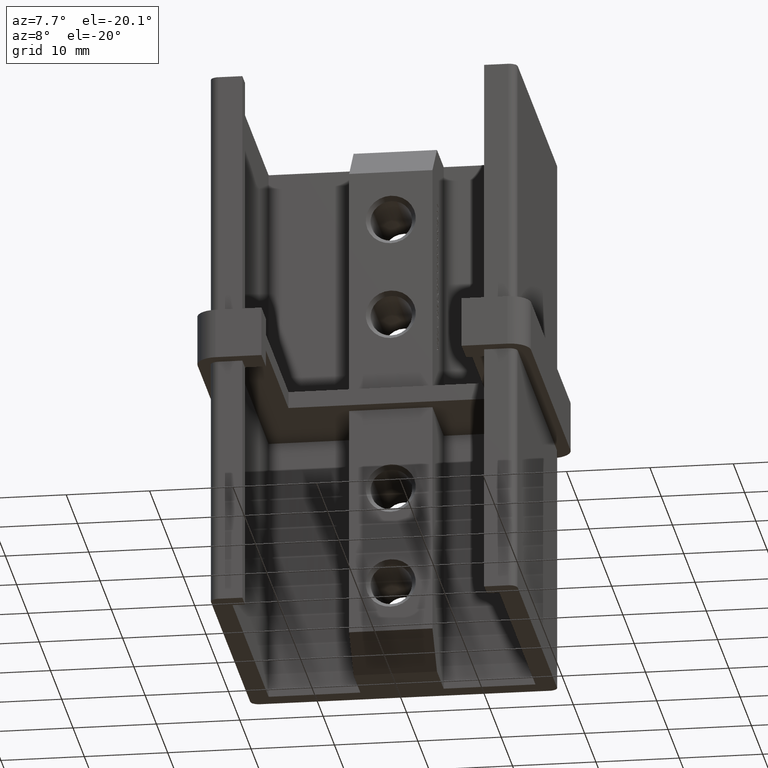
[diagram: clean part render]
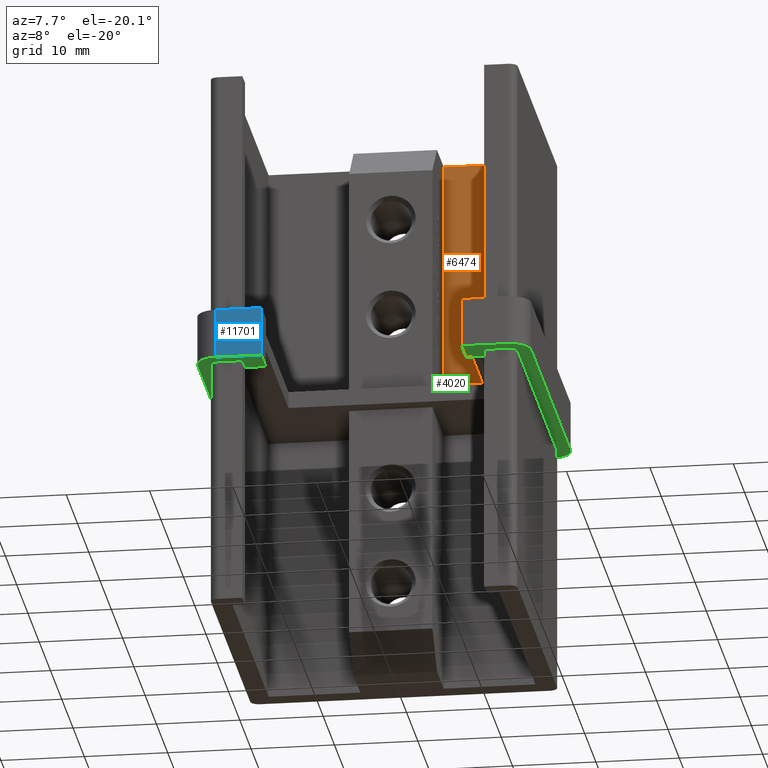
[diagram: same view with three faces highlighted in distinct colors, each labeled with its STEP entity id]
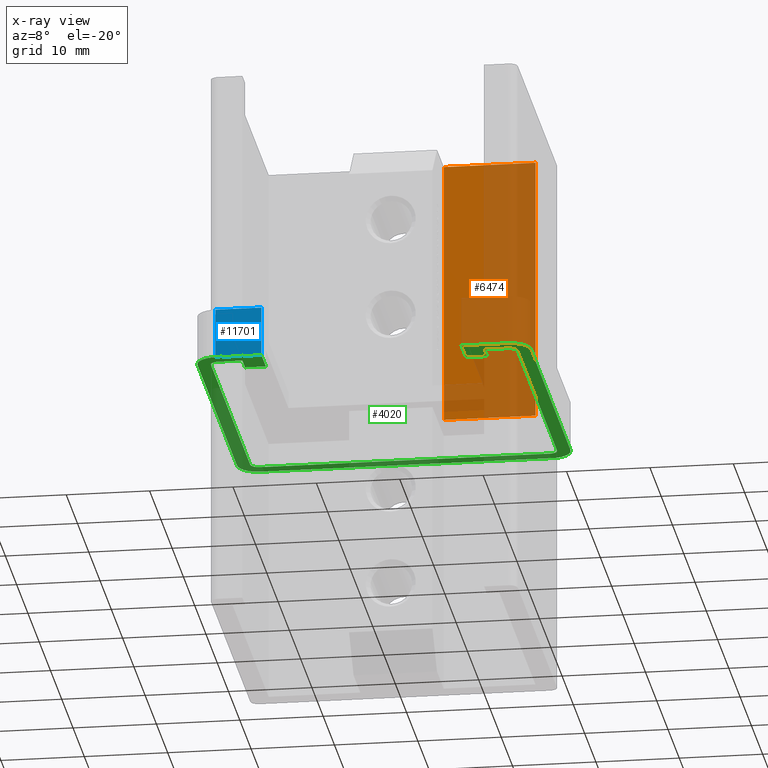
[diagram: x-ray of the same camera — body ghosted, the three highlighted faces saturated]
A machine part, auxiliary view with three faces highlighted in distinct colors.
The next image is the same camera in x-ray (body ghosted, the three faces saturated) — at least one of them is partly hidden behind the body in this view.
Their STEP definitions:

[orange] entity #6474 — the highlighted planar face has unit normal (-0, 1, 0).
#902 = CARTESIAN_POINT ( 'NONE',  ( 5.000000000000004441, 16.00000000000000000, -2.999999999999997335 ) ) ;
#1118 = CARTESIAN_POINT ( 'NONE',  ( 5.000000000000000000, 15.99999999999999645, 1.000000000000000000 ) ) ;
#1190 = VECTOR ( 'NONE', #4394, 1000.000000000000000 ) ;
#2762 = LINE ( 'NONE', #3332, #6674 ) ;
#3129 = LINE ( 'NONE', #902, #11773 ) ;
#3332 = CARTESIAN_POINT ( 'NONE',  ( 16.00000000000000355, 16.00000000000000000, 33.00000000000000000 ) ) ;
#3423 = VERTEX_POINT ( 'NONE', #7802 ) ;
#4394 = DIRECTION ( 'NONE',  ( -1.000000000000000000, -3.154042683594194134E-16, -0.000000000000000000 ) ) ;
#4614 = VERTEX_POINT ( 'NONE', #9147 ) ;
#4632 = ORIENTED_EDGE ( 'NONE', *, *, #9198, .T. ) ;
#5785 = VERTEX_POINT ( 'NONE', #9968 ) ;
#5965 = EDGE_CURVE ( 'NONE', #10686, #3423, #3129, .T. ) ;
#6474 = ADVANCED_FACE ( 'NONE', ( #11579 ), #6626, .F. ) ;
#6579 = DIRECTION ( 'NONE',  ( -0.000000000000000000, 1.000000000000000000, 0.000000000000000000 ) ) ;
#6626 = PLANE ( 'NONE',  #12592 ) ;
#6631 = EDGE_CURVE ( 'NONE', #10686, #4614, #2762, .T. ) ;
#6670 = CARTESIAN_POINT ( 'NONE',  ( 5.000000000000000000, 15.99999999999999645, 33.00000000000000000 ) ) ;
#6674 = VECTOR ( 'NONE', #9205, 1000.000000000000000 ) ;
#6727 = DIRECTION ( 'NONE',  ( 0.000000000000000000, -0.000000000000000000, 1.000000000000000000 ) ) ;
#7031 = ORIENTED_EDGE ( 'NONE', *, *, #6631, .F. ) ;
#7802 = CARTESIAN_POINT ( 'NONE',  ( 5.000000000000000000, 15.99999999999999645, 1.000000000000000000 ) ) ;
#9147 = CARTESIAN_POINT ( 'NONE',  ( 16.00000000000000355, 16.00000000000000000, 33.00000000000000000 ) ) ;
#9198 = EDGE_CURVE ( 'NONE', #5785, #4614, #14152, .T. ) ;
#9205 = DIRECTION ( 'NONE',  ( 1.000000000000000000, -0.000000000000000000, -0.000000000000000000 ) ) ;
#9361 = CARTESIAN_POINT ( 'NONE',  ( 16.00000000000000355, 16.00000000000000000, -3.000000000000000000 ) ) ;
#9968 = CARTESIAN_POINT ( 'NONE',  ( 16.00000000000000355, 16.00000000000000000, 1.000000000000000000 ) ) ;
#10237 = DIRECTION ( 'NONE',  ( -0.000000000000000000, -0.000000000000000000, 1.000000000000000000 ) ) ;
#10425 = ORIENTED_EDGE ( 'NONE', *, *, #5965, .T. ) ;
#10686 = VERTEX_POINT ( 'NONE', #6670 ) ;
#11236 = EDGE_LOOP ( 'NONE', ( #14599, #4632, #7031, #10425 ) ) ;
#11579 = FACE_OUTER_BOUND ( 'NONE', #11236, .T. ) ;
#11773 = VECTOR ( 'NONE', #14379, 1000.000000000000000 ) ;
#12242 = EDGE_CURVE ( 'NONE', #5785, #3423, #13719, .T. ) ;
#12592 = AXIS2_PLACEMENT_3D ( 'NONE', #14397, #6579, #6727 ) ;
#12720 = VECTOR ( 'NONE', #10237, 1000.000000000000000 ) ;
#13719 = LINE ( 'NONE', #1118, #1190 ) ;
#14152 = LINE ( 'NONE', #9361, #12720 ) ;
#14379 = DIRECTION ( 'NONE',  ( 1.314184451497581013E-16, 0.000000000000000000, -1.000000000000000000 ) ) ;
#14397 = CARTESIAN_POINT ( 'NONE',  ( -16.00000000000000000, 16.00000000000000000, -3.000000000000000000 ) ) ;
#14599 = ORIENTED_EDGE ( 'NONE', *, *, #12242, .F. ) ;

[blue] entity #11701 — the highlighted planar face has unit normal (0, 1, 0).
#1341 = DIRECTION ( 'NONE',  ( -0.000000000000000000, -0.000000000000000000, 1.000000000000000000 ) ) ;
#1403 = CARTESIAN_POINT ( 'NONE',  ( -17.50000000000000000, -20.00000000000000000, 3.000000000000000000 ) ) ;
#1557 = DIRECTION ( 'NONE',  ( -0.000000000000000000, 0.000000000000000000, -1.000000000000000000 ) ) ;
#2493 = ORIENTED_EDGE ( 'NONE', *, *, #7087, .T. ) ;
#2660 = ORIENTED_EDGE ( 'NONE', *, *, #12438, .F. ) ;
#3430 = DIRECTION ( 'NONE',  ( 0.000000000000000000, 1.000000000000000000, 0.000000000000000000 ) ) ;
#4096 = VERTEX_POINT ( 'NONE', #5899 ) ;
#4526 = CARTESIAN_POINT ( 'NONE',  ( -20.00000000000000000, -20.00000000000000000, 3.000000000000000000 ) ) ;
#4836 = CARTESIAN_POINT ( 'NONE',  ( -17.50000000000000000, -20.00000000000000000, 3.000000000000000000 ) ) ;
#5140 = EDGE_LOOP ( 'NONE', ( #2660, #7378, #2493, #10314 ) ) ;
#5847 = LINE ( 'NONE', #8075, #9005 ) ;
#5899 = CARTESIAN_POINT ( 'NONE',  ( -11.99999999999999822, -20.00000000000000000, -3.000000000000000000 ) ) ;
#5969 = LINE ( 'NONE', #13421, #8934 ) ;
#6728 = EDGE_CURVE ( 'NONE', #9200, #12799, #12995, .T. ) ;
#6802 = DIRECTION ( 'NONE',  ( 1.000000000000000000, 0.000000000000000000, 0.000000000000000000 ) ) ;
#6931 = CARTESIAN_POINT ( 'NONE',  ( -20.00000000000000000, -20.00000000000000000, 3.000000000000000000 ) ) ;
#6960 = CARTESIAN_POINT ( 'NONE',  ( -17.50000000000000000, -20.00000000000000000, -3.000000000000000000 ) ) ;
#7087 = EDGE_CURVE ( 'NONE', #12799, #4096, #5969, .T. ) ;
#7378 = ORIENTED_EDGE ( 'NONE', *, *, #6728, .T. ) ;
#7806 = VERTEX_POINT ( 'NONE', #8251 ) ;
#8075 = CARTESIAN_POINT ( 'NONE',  ( -11.99999999999999822, -20.00000000000000000, -3.000000000000000000 ) ) ;
#8079 = PLANE ( 'NONE',  #8902 ) ;
#8095 = DIRECTION ( 'NONE',  ( 1.000000000000000000, 0.000000000000000000, 0.000000000000000000 ) ) ;
#8251 = CARTESIAN_POINT ( 'NONE',  ( -11.99999999999999822, -20.00000000000000000, 3.000000000000000000 ) ) ;
#8902 = AXIS2_PLACEMENT_3D ( 'NONE', #4526, #3430, #10136 ) ;
#8934 = VECTOR ( 'NONE', #6802, 1000.000000000000000 ) ;
#9005 = VECTOR ( 'NONE', #1341, 1000.000000000000000 ) ;
#9200 = VERTEX_POINT ( 'NONE', #4836 ) ;
#9853 = LINE ( 'NONE', #6931, #11414 ) ;
#10136 = DIRECTION ( 'NONE',  ( 0.000000000000000000, -0.000000000000000000, 1.000000000000000000 ) ) ;
#10314 = ORIENTED_EDGE ( 'NONE', *, *, #10835, .T. ) ;
#10835 = EDGE_CURVE ( 'NONE', #4096, #7806, #5847, .T. ) ;
#11414 = VECTOR ( 'NONE', #8095, 1000.000000000000000 ) ;
#11701 = ADVANCED_FACE ( 'NONE', ( #13905 ), #8079, .F. ) ;
#12267 = VECTOR ( 'NONE', #1557, 1000.000000000000000 ) ;
#12438 = EDGE_CURVE ( 'NONE', #9200, #7806, #9853, .T. ) ;
#12799 = VERTEX_POINT ( 'NONE', #6960 ) ;
#12995 = LINE ( 'NONE', #1403, #12267 ) ;
#13421 = CARTESIAN_POINT ( 'NONE',  ( -20.00000000000000000, -20.00000000000000000, -3.000000000000000000 ) ) ;
#13905 = FACE_OUTER_BOUND ( 'NONE', #5140, .T. ) ;

[green] entity #4020 — the highlighted planar face has unit normal (-0, 0, 1).
#8 = LINE ( 'NONE', #11470, #13960 ) ;
#86 = VERTEX_POINT ( 'NONE', #8887 ) ;
#136 = ORIENTED_EDGE ( 'NONE', *, *, #14668, .F. ) ;
#252 = DIRECTION ( 'NONE',  ( -0.000000000000000000, 1.000000000000000000, -0.000000000000000000 ) ) ;
#261 = EDGE_CURVE ( 'NONE', #9141, #13187, #4163, .T. ) ;
#410 = DIRECTION ( 'NONE',  ( 1.000000000000000000, 0.000000000000000000, 0.000000000000000000 ) ) ;
#560 = EDGE_CURVE ( 'NONE', #9141, #11382, #10860, .T. ) ;
#796 = ORIENTED_EDGE ( 'NONE', *, *, #3954, .T. ) ;
#904 = CARTESIAN_POINT ( 'NONE',  ( 17.39999999999999147, 17.39999999999999858, -2.999999999999999112 ) ) ;
#916 = CARTESIAN_POINT ( 'NONE',  ( -20.00000000000000711, 17.50000000000000000, -3.000000000000000000 ) ) ;
#993 = DIRECTION ( 'NONE',  ( -0.000000000000000000, 0.000000000000000000, 1.000000000000000000 ) ) ;
#1215 = CIRCLE ( 'NONE', #2455, 1.000000000000000888 ) ;
#1256 = VECTOR ( 'NONE', #12340, 1000.000000000000000 ) ;
#1271 = AXIS2_PLACEMENT_3D ( 'NONE', #11110, #4353, #13371 ) ;
#1428 = ORIENTED_EDGE ( 'NONE', *, *, #14386, .F. ) ;
#1442 = LINE ( 'NONE', #7693, #1256 ) ;
#1578 = CARTESIAN_POINT ( 'NONE',  ( -14.49999999999999822, -18.40000000000000213, -3.000000000000000000 ) ) ;
#1584 = AXIS2_PLACEMENT_3D ( 'NONE', #9546, #11797, #2781 ) ;
#1761 = DIRECTION ( 'NONE',  ( 0.000000000000000000, -1.000000000000000000, 0.000000000000000000 ) ) ;
#1921 = ORIENTED_EDGE ( 'NONE', *, *, #560, .T. ) ;
#1989 = DIRECTION ( 'NONE',  ( 1.000000000000000000, 0.000000000000000000, 0.000000000000000000 ) ) ;
#2105 = LINE ( 'NONE', #7022, #9707 ) ;
#2180 = CARTESIAN_POINT ( 'NONE',  ( -18.40000000000000568, -17.40000000000000568, -3.000000000000000000 ) ) ;
#2219 = DIRECTION ( 'NONE',  ( 1.000000000000000000, 0.000000000000000000, 0.000000000000000000 ) ) ;
#2255 = VERTEX_POINT ( 'NONE', #7458 ) ;
#2264 = EDGE_CURVE ( 'NONE', #7928, #5059, #4568, .T. ) ;
#2440 = VECTOR ( 'NONE', #252, 1000.000000000000000 ) ;
#2455 = AXIS2_PLACEMENT_3D ( 'NONE', #5250, #13103, #7470 ) ;
#2462 = ORIENTED_EDGE ( 'NONE', *, *, #4251, .T. ) ;
#2477 = LINE ( 'NONE', #7731, #14671 ) ;
#2583 = ORIENTED_EDGE ( 'NONE', *, *, #261, .F. ) ;
#2615 = FACE_OUTER_BOUND ( 'NONE', #13537, .T. ) ;
#2618 = LINE ( 'NONE', #14126, #5483 ) ;
#2646 = DIRECTION ( 'NONE',  ( -1.000000000000000000, -0.000000000000000000, -0.000000000000000000 ) ) ;
#2781 = DIRECTION ( 'NONE',  ( 1.000000000000000000, 0.000000000000000000, 0.000000000000000000 ) ) ;
#2798 = CARTESIAN_POINT ( 'NONE',  ( 17.39999999999999147, 18.39999999999999858, -3.000000000000000000 ) ) ;
#2849 = DIRECTION ( 'NONE',  ( -1.000000000000000000, 0.000000000000000000, 0.000000000000000000 ) ) ;
#2924 = CARTESIAN_POINT ( 'NONE',  ( -11.99999999999999822, -16.00000000000000000, -3.000000000000000000 ) ) ;
#2940 = CARTESIAN_POINT ( 'NONE',  ( -14.49999999999999822, -15.99999999999999645, -3.000000000000000000 ) ) ;
#3111 = VERTEX_POINT ( 'NONE', #6098 ) ;
#3290 = CARTESIAN_POINT ( 'NONE',  ( 18.39999999999999147, -17.40000000000000568, -3.000000000000000000 ) ) ;
#3406 = AXIS2_PLACEMENT_3D ( 'NONE', #6142, #6093, #6242 ) ;
#3453 = CARTESIAN_POINT ( 'NONE',  ( 19.99999999999999289, 20.00000000000000000, -3.000000000000000000 ) ) ;
#3611 = CARTESIAN_POINT ( 'NONE',  ( 12.00000000000000178, -15.99999999999999645, -3.000000000000000000 ) ) ;
#3684 = LINE ( 'NONE', #12629, #5309 ) ;
#3713 = CARTESIAN_POINT ( 'NONE',  ( -20.00000000000000000, -20.00000000000000000, -3.000000000000000000 ) ) ;
#3816 = CARTESIAN_POINT ( 'NONE',  ( 18.39999999999999147, -18.40000000000000924, -3.000000000000000000 ) ) ;
#3946 = ORIENTED_EDGE ( 'NONE', *, *, #10601, .T. ) ;
#3954 = EDGE_CURVE ( 'NONE', #4531, #86, #14106, .T. ) ;
#4020 = ADVANCED_FACE ( 'NONE', ( #2615 ), #8261, .F. ) ;
#4036 = ORIENTED_EDGE ( 'NONE', *, *, #4849, .T. ) ;
#4060 = EDGE_CURVE ( 'NONE', #5059, #5058, #14278, .T. ) ;
#4096 = VERTEX_POINT ( 'NONE', #5899 ) ;
#4143 = EDGE_CURVE ( 'NONE', #14366, #5542, #2105, .T. ) ;
#4163 = LINE ( 'NONE', #3453, #10500 ) ;
#4251 = EDGE_CURVE ( 'NONE', #11892, #14603, #6903, .T. ) ;
#4300 = DIRECTION ( 'NONE',  ( 1.000000000000000000, 0.000000000000000000, 0.000000000000000000 ) ) ;
#4353 = DIRECTION ( 'NONE',  ( 0.000000000000000000, -0.000000000000000000, -1.000000000000000000 ) ) ;
#4419 = VERTEX_POINT ( 'NONE', #916 ) ;
#4472 = CARTESIAN_POINT ( 'NONE',  ( -17.50000000000000711, 17.50000000000000000, -3.000000000000000000 ) ) ;
#4531 = VERTEX_POINT ( 'NONE', #5625 ) ;
#4568 = LINE ( 'NONE', #5089, #11605 ) ;
#4601 = DIRECTION ( 'NONE',  ( -1.734723475976807094E-16, 1.000000000000000000, -0.000000000000000000 ) ) ;
#4625 = EDGE_CURVE ( 'NONE', #86, #7928, #3684, .T. ) ;
#4789 = EDGE_CURVE ( 'NONE', #12291, #12216, #2618, .T. ) ;
#4849 = EDGE_CURVE ( 'NONE', #12265, #13187, #7431, .T. ) ;
#5058 = VERTEX_POINT ( 'NONE', #11483 ) ;
#5059 = VERTEX_POINT ( 'NONE', #5709 ) ;
#5089 = CARTESIAN_POINT ( 'NONE',  ( 14.50000000000000178, -15.99999999999999289, -3.000000000000000000 ) ) ;
#5097 = CARTESIAN_POINT ( 'NONE',  ( -20.00000000000000711, 20.00000000000000000, -3.000000000000000000 ) ) ;
#5100 = CARTESIAN_POINT ( 'NONE',  ( -18.40000000000000568, 18.39999999999999858, -3.000000000000000000 ) ) ;
#5250 = CARTESIAN_POINT ( 'NONE',  ( -17.40000000000000568, 17.39999999999999858, -2.999999999999999112 ) ) ;
#5254 = ORIENTED_EDGE ( 'NONE', *, *, #9820, .T. ) ;
#5309 = VECTOR ( 'NONE', #9250, 1000.000000000000000 ) ;
#5341 = ORIENTED_EDGE ( 'NONE', *, *, #2264, .T. ) ;
#5438 = DIRECTION ( 'NONE',  ( 0.000000000000000000, -0.000000000000000000, -1.000000000000000000 ) ) ;
#5483 = VECTOR ( 'NONE', #9734, 1000.000000000000000 ) ;
#5542 = VERTEX_POINT ( 'NONE', #12635 ) ;
#5547 = CARTESIAN_POINT ( 'NONE',  ( -17.50000000000000711, 20.00000000000000000, -3.000000000000000000 ) ) ;
#5625 = CARTESIAN_POINT ( 'NONE',  ( 12.00000000000000178, -19.99999999999999645, -3.000000000000000000 ) ) ;
#5709 = CARTESIAN_POINT ( 'NONE',  ( 14.50000000000000178, -18.39999999999999503, -3.000000000000000000 ) ) ;
#5716 = DIRECTION ( 'NONE',  ( 0.000000000000000000, -1.000000000000000000, 0.000000000000000000 ) ) ;
#5872 = LINE ( 'NONE', #2940, #13418 ) ;
#5880 = EDGE_CURVE ( 'NONE', #12799, #2255, #12464, .T. ) ;
#5887 = CARTESIAN_POINT ( 'NONE',  ( 19.99999999999999289, 17.50000000000000000, -3.000000000000000000 ) ) ;
#5899 = CARTESIAN_POINT ( 'NONE',  ( -11.99999999999999822, -20.00000000000000000, -3.000000000000000000 ) ) ;
#5911 = ORIENTED_EDGE ( 'NONE', *, *, #9843, .T. ) ;
#5969 = LINE ( 'NONE', #13421, #8934 ) ;
#6093 = DIRECTION ( 'NONE',  ( -0.000000000000000000, 0.000000000000000000, 1.000000000000000000 ) ) ;
#6098 = CARTESIAN_POINT ( 'NONE',  ( -14.49999999999999822, -15.99999999999999645, -3.000000000000000000 ) ) ;
#6142 = CARTESIAN_POINT ( 'NONE',  ( 17.39999999999999147, -17.40000000000000568, -2.999999999999999112 ) ) ;
#6242 = DIRECTION ( 'NONE',  ( 1.000000000000000000, 0.000000000000000000, 0.000000000000000000 ) ) ;
#6696 = CIRCLE ( 'NONE', #3406, 1.000000000000000888 ) ;
#6752 = CARTESIAN_POINT ( 'NONE',  ( -17.40000000000000213, -18.40000000000000568, -3.000000000000000000 ) ) ;
#6802 = DIRECTION ( 'NONE',  ( 1.000000000000000000, 0.000000000000000000, 0.000000000000000000 ) ) ;
#6903 = LINE ( 'NONE', #5100, #9876 ) ;
#6960 = CARTESIAN_POINT ( 'NONE',  ( -17.50000000000000000, -20.00000000000000000, -3.000000000000000000 ) ) ;
#7022 = CARTESIAN_POINT ( 'NONE',  ( 18.39999999999999147, 18.39999999999999858, -3.000000000000000000 ) ) ;
#7058 = LINE ( 'NONE', #3713, #9685 ) ;
#7087 = EDGE_CURVE ( 'NONE', #12799, #4096, #5969, .T. ) ;
#7117 = ORIENTED_EDGE ( 'NONE', *, *, #14652, .T. ) ;
#7119 = LINE ( 'NONE', #5097, #7816 ) ;
#7232 = VECTOR ( 'NONE', #8435, 1000.000000000000000 ) ;
#7284 = ORIENTED_EDGE ( 'NONE', *, *, #5880, .T. ) ;
#7298 = DIRECTION ( 'NONE',  ( -0.000000000000000000, 0.000000000000000000, 1.000000000000000000 ) ) ;
#7431 = CIRCLE ( 'NONE', #1584, 2.499999999999998668 ) ;
#7458 = CARTESIAN_POINT ( 'NONE',  ( -20.00000000000000000, -17.50000000000000355, -3.000000000000000000 ) ) ;
#7470 = DIRECTION ( 'NONE',  ( 1.000000000000000000, 0.000000000000000000, 0.000000000000000000 ) ) ;
#7646 = ORIENTED_EDGE ( 'NONE', *, *, #4789, .T. ) ;
#7693 = CARTESIAN_POINT ( 'NONE',  ( -20.00000000000000711, 20.00000000000000000, -3.000000000000000000 ) ) ;
#7731 = CARTESIAN_POINT ( 'NONE',  ( -11.99999999999999822, -16.00000000000000000, -3.000000000000000000 ) ) ;
#7816 = VECTOR ( 'NONE', #2646, 1000.000000000000000 ) ;
#7830 = ORIENTED_EDGE ( 'NONE', *, *, #9399, .T. ) ;
#7928 = VERTEX_POINT ( 'NONE', #11827 ) ;
#7955 = CARTESIAN_POINT ( 'NONE',  ( -14.49999999999999822, -18.40000000000000213, -3.000000000000000000 ) ) ;
#7993 = CIRCLE ( 'NONE', #9383, 2.500000000000000444 ) ;
#8036 = ORIENTED_EDGE ( 'NONE', *, *, #12610, .T. ) ;
#8202 = DIRECTION ( 'NONE',  ( 1.000000000000000000, 0.000000000000000000, 0.000000000000000000 ) ) ;
#8261 = PLANE ( 'NONE',  #10192 ) ;
#8327 = ORIENTED_EDGE ( 'NONE', *, *, #7087, .F. ) ;
#8423 = ORIENTED_EDGE ( 'NONE', *, *, #9779, .T. ) ;
#8435 = DIRECTION ( 'NONE',  ( 1.000000000000000000, 1.779203565104413973E-15, 0.000000000000000000 ) ) ;
#8675 = CIRCLE ( 'NONE', #8797, 1.000000000000000888 ) ;
#8745 = CARTESIAN_POINT ( 'NONE',  ( 17.50000000000000000, -17.50000000000000355, -3.000000000000000000 ) ) ;
#8797 = AXIS2_PLACEMENT_3D ( 'NONE', #904, #10865, #1989 ) ;
#8887 = CARTESIAN_POINT ( 'NONE',  ( 12.00000000000000178, -15.99999999999999645, -3.000000000000000000 ) ) ;
#8934 = VECTOR ( 'NONE', #6802, 1000.000000000000000 ) ;
#9004 = VERTEX_POINT ( 'NONE', #7955 ) ;
#9013 = VERTEX_POINT ( 'NONE', #5547 ) ;
#9066 = CARTESIAN_POINT ( 'NONE',  ( 18.39999999999999147, 17.39999999999999858, -3.000000000000000000 ) ) ;
#9137 = LINE ( 'NONE', #1578, #7232 ) ;
#9141 = VERTEX_POINT ( 'NONE', #10287 ) ;
#9250 = DIRECTION ( 'NONE',  ( 1.000000000000000000, -8.673617379884031528E-16, 0.000000000000000000 ) ) ;
#9353 = EDGE_CURVE ( 'NONE', #3111, #11779, #8, .T. ) ;
#9383 = AXIS2_PLACEMENT_3D ( 'NONE', #4472, #5438, #12194 ) ;
#9399 = EDGE_CURVE ( 'NONE', #9004, #3111, #5872, .T. ) ;
#9495 = DIRECTION ( 'NONE',  ( 1.000000000000000000, -3.558407130208844512E-15, 0.000000000000000000 ) ) ;
#9546 = CARTESIAN_POINT ( 'NONE',  ( 17.49999999999999645, 17.50000000000000000, -3.000000000000000000 ) ) ;
#9685 = VECTOR ( 'NONE', #8202, 1000.000000000000000 ) ;
#9707 = VECTOR ( 'NONE', #2849, 1000.000000000000000 ) ;
#9734 = DIRECTION ( 'NONE',  ( 0.000000000000000000, 1.000000000000000000, 0.000000000000000000 ) ) ;
#9741 = CARTESIAN_POINT ( 'NONE',  ( -18.40000000000000568, 17.39999999999999858, -3.000000000000000000 ) ) ;
#9779 = EDGE_CURVE ( 'NONE', #12216, #14366, #8675, .T. ) ;
#9820 = EDGE_CURVE ( 'NONE', #11779, #4096, #2477, .T. ) ;
#9843 = EDGE_CURVE ( 'NONE', #14603, #13876, #11823, .T. ) ;
#9876 = VECTOR ( 'NONE', #10598, 1000.000000000000000 ) ;
#10024 = CARTESIAN_POINT ( 'NONE',  ( -17.40000000000000568, -17.40000000000000568, -2.999999999999999112 ) ) ;
#10192 = AXIS2_PLACEMENT_3D ( 'NONE', #11741, #7298, #410 ) ;
#10287 = CARTESIAN_POINT ( 'NONE',  ( 20.00000000000000000, -17.50000000000000355, -3.000000000000000000 ) ) ;
#10500 = VECTOR ( 'NONE', #4601, 1000.000000000000000 ) ;
#10598 = DIRECTION ( 'NONE',  ( 0.000000000000000000, -1.000000000000000000, 0.000000000000000000 ) ) ;
#10601 = EDGE_CURVE ( 'NONE', #5542, #11892, #1215, .T. ) ;
#10860 = CIRCLE ( 'NONE', #12746, 2.499999999999998668 ) ;
#10865 = DIRECTION ( 'NONE',  ( -0.000000000000000000, 0.000000000000000000, 1.000000000000000000 ) ) ;
#11110 = CARTESIAN_POINT ( 'NONE',  ( -17.50000000000000000, -17.50000000000000000, -3.000000000000000000 ) ) ;
#11382 = VERTEX_POINT ( 'NONE', #11824 ) ;
#11470 = CARTESIAN_POINT ( 'NONE',  ( -16.00000000000000000, -16.00000000000000000, -3.000000000000000000 ) ) ;
#11483 = CARTESIAN_POINT ( 'NONE',  ( 17.39999999999998792, -18.40000000000000568, -3.000000000000000000 ) ) ;
#11605 = VECTOR ( 'NONE', #1761, 1000.000000000000000 ) ;
#11716 = DIRECTION ( 'NONE',  ( 0.000000000000000000, 1.000000000000000000, 0.000000000000000000 ) ) ;
#11741 = CARTESIAN_POINT ( 'NONE',  ( 0.000000000000000000, 0.000000000000000000, -3.000000000000000000 ) ) ;
#11779 = VERTEX_POINT ( 'NONE', #2924 ) ;
#11797 = DIRECTION ( 'NONE',  ( 0.000000000000000000, -0.000000000000000000, -1.000000000000000000 ) ) ;
#11823 = CIRCLE ( 'NONE', #14374, 1.000000000000000888 ) ;
#11824 = CARTESIAN_POINT ( 'NONE',  ( 17.50000000000000355, -20.00000000000000000, -3.000000000000000000 ) ) ;
#11827 = CARTESIAN_POINT ( 'NONE',  ( 14.50000000000000178, -15.99999999999999289, -3.000000000000000000 ) ) ;
#11892 = VERTEX_POINT ( 'NONE', #9741 ) ;
#12019 = EDGE_CURVE ( 'NONE', #4531, #11382, #7058, .T. ) ;
#12194 = DIRECTION ( 'NONE',  ( 1.000000000000000000, 0.000000000000000000, 0.000000000000000000 ) ) ;
#12216 = VERTEX_POINT ( 'NONE', #9066 ) ;
#12254 = CARTESIAN_POINT ( 'NONE',  ( 17.49999999999999645, 20.00000000000000000, -3.000000000000000000 ) ) ;
#12265 = VERTEX_POINT ( 'NONE', #12254 ) ;
#12291 = VERTEX_POINT ( 'NONE', #3290 ) ;
#12340 = DIRECTION ( 'NONE',  ( 1.734723475976807094E-16, -1.000000000000000000, 0.000000000000000000 ) ) ;
#12464 = CIRCLE ( 'NONE', #1271, 2.500000000000000444 ) ;
#12524 = EDGE_CURVE ( 'NONE', #5058, #12291, #6696, .T. ) ;
#12610 = EDGE_CURVE ( 'NONE', #13876, #9004, #9137, .T. ) ;
#12618 = ORIENTED_EDGE ( 'NONE', *, *, #4625, .T. ) ;
#12629 = CARTESIAN_POINT ( 'NONE',  ( 12.00000000000000178, -15.99999999999999645, -3.000000000000000000 ) ) ;
#12635 = CARTESIAN_POINT ( 'NONE',  ( -17.40000000000000568, 18.39999999999999858, -3.000000000000000000 ) ) ;
#12743 = ORIENTED_EDGE ( 'NONE', *, *, #9353, .T. ) ;
#12746 = AXIS2_PLACEMENT_3D ( 'NONE', #8745, #13082, #4300 ) ;
#12799 = VERTEX_POINT ( 'NONE', #6960 ) ;
#12827 = ORIENTED_EDGE ( 'NONE', *, *, #12019, .F. ) ;
#12830 = ORIENTED_EDGE ( 'NONE', *, *, #4060, .T. ) ;
#13080 = ORIENTED_EDGE ( 'NONE', *, *, #4143, .T. ) ;
#13082 = DIRECTION ( 'NONE',  ( 0.000000000000000000, -0.000000000000000000, -1.000000000000000000 ) ) ;
#13103 = DIRECTION ( 'NONE',  ( -0.000000000000000000, 0.000000000000000000, 1.000000000000000000 ) ) ;
#13176 = ORIENTED_EDGE ( 'NONE', *, *, #12524, .T. ) ;
#13187 = VERTEX_POINT ( 'NONE', #5887 ) ;
#13371 = DIRECTION ( 'NONE',  ( 1.000000000000000000, 0.000000000000000000, 0.000000000000000000 ) ) ;
#13418 = VECTOR ( 'NONE', #11716, 1000.000000000000000 ) ;
#13421 = CARTESIAN_POINT ( 'NONE',  ( -20.00000000000000000, -20.00000000000000000, -3.000000000000000000 ) ) ;
#13537 = EDGE_LOOP ( 'NONE', ( #2462, #5911, #8036, #7830, #12743, #5254, #8327, #7284, #136, #7117, #1428, #4036, #2583, #1921, #12827, #796, #12618, #5341, #12830, #13176, #7646, #8423, #13080, #3946 ) ) ;
#13876 = VERTEX_POINT ( 'NONE', #6752 ) ;
#13960 = VECTOR ( 'NONE', #14000, 1000.000000000000000 ) ;
#14000 = DIRECTION ( 'NONE',  ( 1.000000000000000000, 0.000000000000000000, 0.000000000000000000 ) ) ;
#14106 = LINE ( 'NONE', #3611, #2440 ) ;
#14119 = VECTOR ( 'NONE', #9495, 1000.000000000000000 ) ;
#14126 = CARTESIAN_POINT ( 'NONE',  ( 18.39999999999999147, 18.39999999999999858, -3.000000000000000000 ) ) ;
#14278 = LINE ( 'NONE', #3816, #14119 ) ;
#14366 = VERTEX_POINT ( 'NONE', #2798 ) ;
#14374 = AXIS2_PLACEMENT_3D ( 'NONE', #10024, #993, #2219 ) ;
#14386 = EDGE_CURVE ( 'NONE', #12265, #9013, #7119, .T. ) ;
#14603 = VERTEX_POINT ( 'NONE', #2180 ) ;
#14652 = EDGE_CURVE ( 'NONE', #4419, #9013, #7993, .T. ) ;
#14668 = EDGE_CURVE ( 'NONE', #4419, #2255, #1442, .T. ) ;
#14671 = VECTOR ( 'NONE', #5716, 1000.000000000000000 ) ;